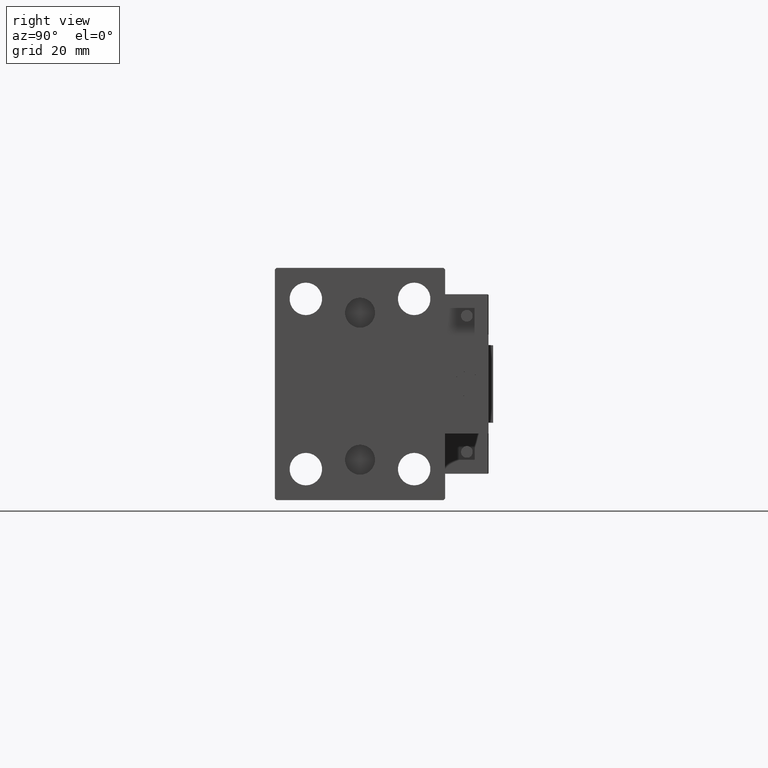
[diagram: clean part render]
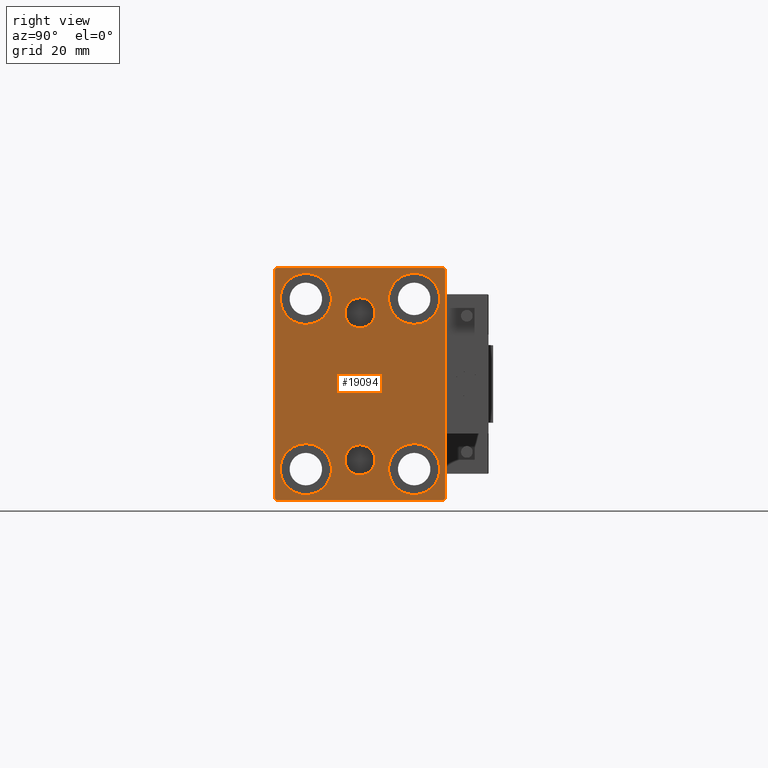
[diagram: same view with one face highlighted and labeled with its STEP entity id]
A machine part, right view. The second image highlights one B-rep face of the part: STEP entity #19094.
In plain terms, the highlighted planar face has unit normal (1, 0, 0).
Its self-contained STEP definition (entity closure, byte-faithful):
#280 = VERTEX_POINT ( 'NONE', #44014 ) ;
#292 = EDGE_CURVE ( 'NONE', #16378, #33007, #23877, .T. ) ;
#389 = LINE ( 'NONE', #42807, #35061 ) ;
#673 = EDGE_CURVE ( 'NONE', #40916, #40655, #35156, .T. ) ;
#700 = DIRECTION ( 'NONE',  ( 0.000000000000000000, 0.000000000000000000, 1.000000000000000000 ) ) ;
#1126 = DIRECTION ( 'NONE',  ( -1.000000000000000000, -0.000000000000000000, -0.000000000000000000 ) ) ;
#1616 = CARTESIAN_POINT ( 'NONE',  ( 135.0000000000000000, -3.571693674697836683E-15, 23.00000000000000711 ) ) ;
#1621 = CARTESIAN_POINT ( 'NONE',  ( 135.0000000000000000, -17.49999999999999645, 27.49999999999999645 ) ) ;
#1746 = CARTESIAN_POINT ( 'NONE',  ( 135.0000000000000000, 17.49999999999999645, -19.25000000000000355 ) ) ;
#2650 = VERTEX_POINT ( 'NONE', #23903 ) ;
#2854 = CARTESIAN_POINT ( 'NONE',  ( 135.0000000000000000, -17.50000000000000355, -27.50000000000000355 ) ) ;
#2983 = CARTESIAN_POINT ( 'NONE',  ( 135.0000000000000000, 17.50000000000000355, 35.74999999999999289 ) ) ;
#3267 = EDGE_CURVE ( 'NONE', #46512, #14750, #26248, .T. ) ;
#3565 = AXIS2_PLACEMENT_3D ( 'NONE', #4362, #30646, #30152 ) ;
#3569 = AXIS2_PLACEMENT_3D ( 'NONE', #8527, #35800, #700 ) ;
#3712 = FACE_OUTER_BOUND ( 'NONE', #30596, .T. ) ;
#4144 = ORIENTED_EDGE ( 'NONE', *, *, #33853, .T. ) ;
#4211 = DIRECTION ( 'NONE',  ( 1.000000000000000000, 0.000000000000000000, 0.000000000000000000 ) ) ;
#4362 = CARTESIAN_POINT ( 'NONE',  ( 135.0000000000000000, -17.49999999999999645, 27.49999999999999645 ) ) ;
#4453 = AXIS2_PLACEMENT_3D ( 'NONE', #40589, #25198, #40833 ) ;
#5478 = VERTEX_POINT ( 'NONE', #41868 ) ;
#5647 = ORIENTED_EDGE ( 'NONE', *, *, #17349, .T. ) ;
#5769 = ORIENTED_EDGE ( 'NONE', *, *, #3267, .T. ) ;
#6103 = ORIENTED_EDGE ( 'NONE', *, *, #7979, .T. ) ;
#6206 = EDGE_LOOP ( 'NONE', ( #41393, #47932 ) ) ;
#7638 = LINE ( 'NONE', #35408, #19503 ) ;
#7979 = EDGE_CURVE ( 'NONE', #40740, #2650, #15123, .T. ) ;
#8527 = CARTESIAN_POINT ( 'NONE',  ( 135.0000000000000000, 17.50000000000000355, 27.49999999999999645 ) ) ;
#8660 = EDGE_CURVE ( 'NONE', #280, #15314, #31286, .T. ) ;
#8837 = VECTOR ( 'NONE', #24343, 1000.000000000000000 ) ;
#9841 = EDGE_CURVE ( 'NONE', #35462, #9878, #24075, .T. ) ;
#9878 = VERTEX_POINT ( 'NONE', #42280 ) ;
#9933 = EDGE_CURVE ( 'NONE', #9878, #35462, #18412, .T. ) ;
#10002 = CIRCLE ( 'NONE', #3569, 8.249999999999992895 ) ;
#11039 = FACE_BOUND ( 'NONE', #49600, .T. ) ;
#11265 = ORIENTED_EDGE ( 'NONE', *, *, #8660, .F. ) ;
#11317 = AXIS2_PLACEMENT_3D ( 'NONE', #23165, #4211, #30997 ) ;
#11343 = CIRCLE ( 'NONE', #24277, 4.859999999999999432 ) ;
#11936 = CARTESIAN_POINT ( 'NONE',  ( 135.0000000000000000, 3.000384657911015074E-15, -24.49999999999999289 ) ) ;
#12477 = CARTESIAN_POINT ( 'NONE',  ( 135.0000000000000000, 27.00000000000002487, 37.50000000000000711 ) ) ;
#12686 = DIRECTION ( 'NONE',  ( 0.000000000000000000, 0.000000000000000000, 1.000000000000000000 ) ) ;
#13353 = AXIS2_PLACEMENT_3D ( 'NONE', #1621, #1126, #27667 ) ;
#14515 = ORIENTED_EDGE ( 'NONE', *, *, #43058, .T. ) ;
#14750 = VERTEX_POINT ( 'NONE', #31890 ) ;
#15123 = CIRCLE ( 'NONE', #39314, 8.250000000000000000 ) ;
#15314 = VERTEX_POINT ( 'NONE', #32652 ) ;
#15410 = LINE ( 'NONE', #30826, #24239 ) ;
#15455 = LINE ( 'NONE', #19248, #20177 ) ;
#15803 = DIRECTION ( 'NONE',  ( -0.000000000000000000, 0.7071067811865573427, -0.7071067811865376918 ) ) ;
#16135 = EDGE_CURVE ( 'NONE', #20723, #30560, #35943, .T. ) ;
#16274 = DIRECTION ( 'NONE',  ( 1.000000000000000000, 0.000000000000000000, 0.000000000000000000 ) ) ;
#16378 = VERTEX_POINT ( 'NONE', #28073 ) ;
#17349 = EDGE_CURVE ( 'NONE', #22988, #44921, #15455, .T. ) ;
#17653 = ORIENTED_EDGE ( 'NONE', *, *, #292, .T. ) ;
#18412 = CIRCLE ( 'NONE', #27293, 4.859999999999999432 ) ;
#19094 = ADVANCED_FACE ( 'NONE', ( #30260, #23413, #45612, #11039, #26218, #38803, #3712 ), #19126, .T. ) ;
#19126 = PLANE ( 'NONE',  #11317 ) ;
#19248 = CARTESIAN_POINT ( 'NONE',  ( 135.0000000000000000, 32.24999999999982947, 32.25000000000027001 ) ) ;
#19409 = CIRCLE ( 'NONE', #34748, 8.249999999999992895 ) ;
#19472 = VECTOR ( 'NONE', #28750, 1000.000000000000000 ) ;
#19503 = VECTOR ( 'NONE', #19764, 1000.000000000000114 ) ;
#19534 = DIRECTION ( 'NONE',  ( 1.000000000000000000, 0.000000000000000000, -0.000000000000000000 ) ) ;
#19691 = CARTESIAN_POINT ( 'NONE',  ( 135.0000000000000000, 27.49999999999999645, 37.50000000000000711 ) ) ;
#19764 = DIRECTION ( 'NONE',  ( -0.000000000000000000, 0.7071067811865474617, 0.7071067811865474617 ) ) ;
#19917 = ORIENTED_EDGE ( 'NONE', *, *, #34938, .F. ) ;
#19965 = DIRECTION ( 'NONE',  ( -1.000000000000000000, -0.000000000000000000, -0.000000000000000000 ) ) ;
#20177 = VECTOR ( 'NONE', #33654, 1000.000000000000000 ) ;
#20201 = EDGE_CURVE ( 'NONE', #40946, #35223, #19409, .T. ) ;
#20706 = ORIENTED_EDGE ( 'NONE', *, *, #44117, .T. ) ;
#20723 = VERTEX_POINT ( 'NONE', #35036 ) ;
#21421 = LINE ( 'NONE', #29243, #19472 ) ;
#21977 = ORIENTED_EDGE ( 'NONE', *, *, #20201, .T. ) ;
#22988 = VERTEX_POINT ( 'NONE', #30304 ) ;
#23165 = CARTESIAN_POINT ( 'NONE',  ( 135.0000000000000000, 0.000000000000000000, 0.000000000000000000 ) ) ;
#23234 = EDGE_LOOP ( 'NONE', ( #14515, #21977 ) ) ;
#23357 = DIRECTION ( 'NONE',  ( 1.000000000000000000, 0.000000000000000000, 0.000000000000000000 ) ) ;
#23363 = DIRECTION ( 'NONE',  ( 0.000000000000000000, 0.000000000000000000, 1.000000000000000000 ) ) ;
#23413 = FACE_BOUND ( 'NONE', #40165, .T. ) ;
#23776 = VECTOR ( 'NONE', #31069, 1000.000000000000000 ) ;
#23877 = CIRCLE ( 'NONE', #13353, 8.249999999999992895 ) ;
#23903 = CARTESIAN_POINT ( 'NONE',  ( 135.0000000000000000, -17.50000000000000355, -35.75000000000000711 ) ) ;
#24075 = CIRCLE ( 'NONE', #49011, 4.859999999999999432 ) ;
#24108 = DIRECTION ( 'NONE',  ( 0.000000000000000000, 0.000000000000000000, -1.000000000000000000 ) ) ;
#24239 = VECTOR ( 'NONE', #46182, 1000.000000000000114 ) ;
#24277 = AXIS2_PLACEMENT_3D ( 'NONE', #11936, #19534, #12686 ) ;
#24343 = DIRECTION ( 'NONE',  ( 0.000000000000000000, 0.000000000000000000, -1.000000000000000000 ) ) ;
#25198 = DIRECTION ( 'NONE',  ( -1.000000000000000000, -0.000000000000000000, -0.000000000000000000 ) ) ;
#25335 = CIRCLE ( 'NONE', #3565, 8.249999999999992895 ) ;
#25914 = CARTESIAN_POINT ( 'NONE',  ( 135.0000000000000000, -17.49999999999999645, 35.74999999999999289 ) ) ;
#26056 = EDGE_LOOP ( 'NONE', ( #48861, #6103 ) ) ;
#26218 = FACE_BOUND ( 'NONE', #23234, .T. ) ;
#26248 = CIRCLE ( 'NONE', #4453, 8.250000000000000000 ) ;
#26407 = CARTESIAN_POINT ( 'NONE',  ( 135.0000000000000000, -3.571693674697836683E-15, 23.00000000000000711 ) ) ;
#27293 = AXIS2_PLACEMENT_3D ( 'NONE', #1616, #16274, #24108 ) ;
#27415 = DIRECTION ( 'NONE',  ( 1.000000000000000000, 0.000000000000000000, -0.000000000000000000 ) ) ;
#27667 = DIRECTION ( 'NONE',  ( 0.000000000000000000, 0.000000000000000000, 1.000000000000000000 ) ) ;
#28073 = CARTESIAN_POINT ( 'NONE',  ( 135.0000000000000000, -17.49999999999999645, 19.25000000000000000 ) ) ;
#28094 = CARTESIAN_POINT ( 'NONE',  ( 135.0000000000000000, -27.50000000000000355, -37.50000000000000000 ) ) ;
#28423 = CIRCLE ( 'NONE', #30839, 8.250000000000000000 ) ;
#28750 = DIRECTION ( 'NONE',  ( 0.000000000000000000, -9.251858538542970348E-17, 1.000000000000000000 ) ) ;
#29243 = CARTESIAN_POINT ( 'NONE',  ( 135.0000000000000000, 27.50000000000000355, -37.50000000000000000 ) ) ;
#29945 = EDGE_CURVE ( 'NONE', #14750, #46512, #37127, .T. ) ;
#30114 = CARTESIAN_POINT ( 'NONE',  ( 135.0000000000000000, 17.50000000000000355, 19.25000000000000000 ) ) ;
#30152 = DIRECTION ( 'NONE',  ( 0.000000000000000000, 0.000000000000000000, 1.000000000000000000 ) ) ;
#30198 = DIRECTION ( 'NONE',  ( 0.000000000000000000, 0.000000000000000000, -1.000000000000000000 ) ) ;
#30260 = FACE_BOUND ( 'NONE', #6206, .T. ) ;
#30304 = CARTESIAN_POINT ( 'NONE',  ( 135.0000000000000000, 27.49999999999999645, 37.00000000000004263 ) ) ;
#30560 = VERTEX_POINT ( 'NONE', #37225 ) ;
#30596 = EDGE_LOOP ( 'NONE', ( #20706, #4144, #39300, #41014, #46643, #39383, #30773, #5647 ) ) ;
#30646 = DIRECTION ( 'NONE',  ( -1.000000000000000000, -0.000000000000000000, -0.000000000000000000 ) ) ;
#30773 = ORIENTED_EDGE ( 'NONE', *, *, #36388, .T. ) ;
#30826 = CARTESIAN_POINT ( 'NONE',  ( 135.0000000000000000, -32.25000000000000711, 32.25000000000000711 ) ) ;
#30839 = AXIS2_PLACEMENT_3D ( 'NONE', #46439, #19965, #31332 ) ;
#30997 = DIRECTION ( 'NONE',  ( 0.000000000000000000, 0.000000000000000000, -1.000000000000000000 ) ) ;
#31069 = DIRECTION ( 'NONE',  ( 0.000000000000000000, -1.000000000000000000, -1.261617073437677999E-16 ) ) ;
#31116 = VECTOR ( 'NONE', #39699, 1000.000000000000000 ) ;
#31286 = CIRCLE ( 'NONE', #38512, 4.859999999999999432 ) ;
#31332 = DIRECTION ( 'NONE',  ( 0.000000000000000000, 0.000000000000000000, 1.000000000000000000 ) ) ;
#31569 = LINE ( 'NONE', #19691, #23776 ) ;
#31890 = CARTESIAN_POINT ( 'NONE',  ( 135.0000000000000000, 17.49999999999999645, -35.75000000000000711 ) ) ;
#32652 = CARTESIAN_POINT ( 'NONE',  ( 135.0000000000000000, 3.595563002296627957E-15, -19.63999999999999346 ) ) ;
#33007 = VERTEX_POINT ( 'NONE', #25914 ) ;
#33316 = DIRECTION ( 'NONE',  ( -1.000000000000000000, -0.000000000000000000, -0.000000000000000000 ) ) ;
#33654 = DIRECTION ( 'NONE',  ( -0.000000000000000000, -0.7071067811865524577, 0.7071067811865426878 ) ) ;
#33660 = DIRECTION ( 'NONE',  ( -1.000000000000000000, -0.000000000000000000, -0.000000000000000000 ) ) ;
#33786 = CARTESIAN_POINT ( 'NONE',  ( 135.0000000000000000, -27.00000000000001776, -37.50000000000000000 ) ) ;
#33853 = EDGE_CURVE ( 'NONE', #44132, #20723, #15410, .T. ) ;
#34748 = AXIS2_PLACEMENT_3D ( 'NONE', #45807, #42041, #43285 ) ;
#34938 = EDGE_CURVE ( 'NONE', #15314, #280, #11343, .T. ) ;
#35036 = CARTESIAN_POINT ( 'NONE',  ( 135.0000000000000000, -27.50000000000000355, 37.00000000000001421 ) ) ;
#35061 = VECTOR ( 'NONE', #15803, 1000.000000000000114 ) ;
#35156 = LINE ( 'NONE', #28094, #31116 ) ;
#35203 = CARTESIAN_POINT ( 'NONE',  ( 135.0000000000000000, -27.50000000000000355, 37.50000000000000000 ) ) ;
#35223 = VERTEX_POINT ( 'NONE', #30114 ) ;
#35408 = CARTESIAN_POINT ( 'NONE',  ( 135.0000000000000000, 32.25000000000000711, -32.25000000000000711 ) ) ;
#35462 = VERTEX_POINT ( 'NONE', #36868 ) ;
#35800 = DIRECTION ( 'NONE',  ( -1.000000000000000000, -0.000000000000000000, -0.000000000000000000 ) ) ;
#35943 = LINE ( 'NONE', #35203, #8837 ) ;
#36179 = ORIENTED_EDGE ( 'NONE', *, *, #46073, .T. ) ;
#36388 = EDGE_CURVE ( 'NONE', #5478, #22988, #21421, .T. ) ;
#36868 = CARTESIAN_POINT ( 'NONE',  ( 135.0000000000000000, -2.976515330312223406E-15, 27.86000000000000654 ) ) ;
#37127 = CIRCLE ( 'NONE', #44387, 8.250000000000000000 ) ;
#37225 = CARTESIAN_POINT ( 'NONE',  ( 135.0000000000000000, -27.50000000000000355, -37.00000000000002842 ) ) ;
#37925 = EDGE_CURVE ( 'NONE', #40655, #5478, #7638, .T. ) ;
#38260 = EDGE_CURVE ( 'NONE', #2650, #40740, #28423, .T. ) ;
#38512 = AXIS2_PLACEMENT_3D ( 'NONE', #46551, #27415, #23363 ) ;
#38803 = FACE_BOUND ( 'NONE', #26056, .T. ) ;
#39300 = ORIENTED_EDGE ( 'NONE', *, *, #16135, .T. ) ;
#39314 = AXIS2_PLACEMENT_3D ( 'NONE', #2854, #33660, #45500 ) ;
#39383 = ORIENTED_EDGE ( 'NONE', *, *, #37925, .T. ) ;
#39699 = DIRECTION ( 'NONE',  ( 0.000000000000000000, 1.000000000000000000, 0.000000000000000000 ) ) ;
#40165 = EDGE_LOOP ( 'NONE', ( #11265, #19917 ) ) ;
#40589 = CARTESIAN_POINT ( 'NONE',  ( 135.0000000000000000, 17.49999999999999645, -27.50000000000000355 ) ) ;
#40655 = VERTEX_POINT ( 'NONE', #44999 ) ;
#40740 = VERTEX_POINT ( 'NONE', #43458 ) ;
#40833 = DIRECTION ( 'NONE',  ( 0.000000000000000000, 0.000000000000000000, 1.000000000000000000 ) ) ;
#40916 = VERTEX_POINT ( 'NONE', #33786 ) ;
#40946 = VERTEX_POINT ( 'NONE', #2983 ) ;
#41014 = ORIENTED_EDGE ( 'NONE', *, *, #47979, .T. ) ;
#41393 = ORIENTED_EDGE ( 'NONE', *, *, #9933, .F. ) ;
#41868 = CARTESIAN_POINT ( 'NONE',  ( 135.0000000000000000, 27.50000000000000355, -37.00000000000001421 ) ) ;
#42041 = DIRECTION ( 'NONE',  ( -1.000000000000000000, -0.000000000000000000, -0.000000000000000000 ) ) ;
#42280 = CARTESIAN_POINT ( 'NONE',  ( 135.0000000000000000, -3.571693674697836683E-15, 18.14000000000000767 ) ) ;
#42807 = CARTESIAN_POINT ( 'NONE',  ( 135.0000000000000000, -32.24999999999963052, -32.25000000000052580 ) ) ;
#43058 = EDGE_CURVE ( 'NONE', #35223, #40946, #10002, .T. ) ;
#43285 = DIRECTION ( 'NONE',  ( 0.000000000000000000, 0.000000000000000000, 1.000000000000000000 ) ) ;
#43458 = CARTESIAN_POINT ( 'NONE',  ( 135.0000000000000000, -17.50000000000000355, -19.25000000000000355 ) ) ;
#44014 = CARTESIAN_POINT ( 'NONE',  ( 135.0000000000000000, 3.000384657911015074E-15, -29.35999999999999233 ) ) ;
#44117 = EDGE_CURVE ( 'NONE', #44921, #44132, #31569, .T. ) ;
#44132 = VERTEX_POINT ( 'NONE', #45918 ) ;
#44387 = AXIS2_PLACEMENT_3D ( 'NONE', #48433, #33316, #48187 ) ;
#44921 = VERTEX_POINT ( 'NONE', #12477 ) ;
#44999 = CARTESIAN_POINT ( 'NONE',  ( 135.0000000000000000, 27.00000000000001776, -37.50000000000000000 ) ) ;
#45259 = EDGE_LOOP ( 'NONE', ( #49057, #5769 ) ) ;
#45500 = DIRECTION ( 'NONE',  ( 0.000000000000000000, 0.000000000000000000, 1.000000000000000000 ) ) ;
#45612 = FACE_BOUND ( 'NONE', #45259, .T. ) ;
#45807 = CARTESIAN_POINT ( 'NONE',  ( 135.0000000000000000, 17.50000000000000355, 27.49999999999999645 ) ) ;
#45918 = CARTESIAN_POINT ( 'NONE',  ( 135.0000000000000000, -27.00000000000001776, 37.50000000000000000 ) ) ;
#46073 = EDGE_CURVE ( 'NONE', #33007, #16378, #25335, .T. ) ;
#46182 = DIRECTION ( 'NONE',  ( 0.000000000000000000, -0.7071067811865474617, -0.7071067811865474617 ) ) ;
#46439 = CARTESIAN_POINT ( 'NONE',  ( 135.0000000000000000, -17.50000000000000355, -27.50000000000000355 ) ) ;
#46512 = VERTEX_POINT ( 'NONE', #1746 ) ;
#46551 = CARTESIAN_POINT ( 'NONE',  ( 135.0000000000000000, 3.000384657911015074E-15, -24.49999999999999289 ) ) ;
#46643 = ORIENTED_EDGE ( 'NONE', *, *, #673, .T. ) ;
#47932 = ORIENTED_EDGE ( 'NONE', *, *, #9841, .F. ) ;
#47979 = EDGE_CURVE ( 'NONE', #30560, #40916, #389, .T. ) ;
#48187 = DIRECTION ( 'NONE',  ( 0.000000000000000000, 0.000000000000000000, 1.000000000000000000 ) ) ;
#48433 = CARTESIAN_POINT ( 'NONE',  ( 135.0000000000000000, 17.49999999999999645, -27.50000000000000355 ) ) ;
#48861 = ORIENTED_EDGE ( 'NONE', *, *, #38260, .T. ) ;
#49011 = AXIS2_PLACEMENT_3D ( 'NONE', #26407, #23357, #30198 ) ;
#49057 = ORIENTED_EDGE ( 'NONE', *, *, #29945, .T. ) ;
#49600 = EDGE_LOOP ( 'NONE', ( #17653, #36179 ) ) ;